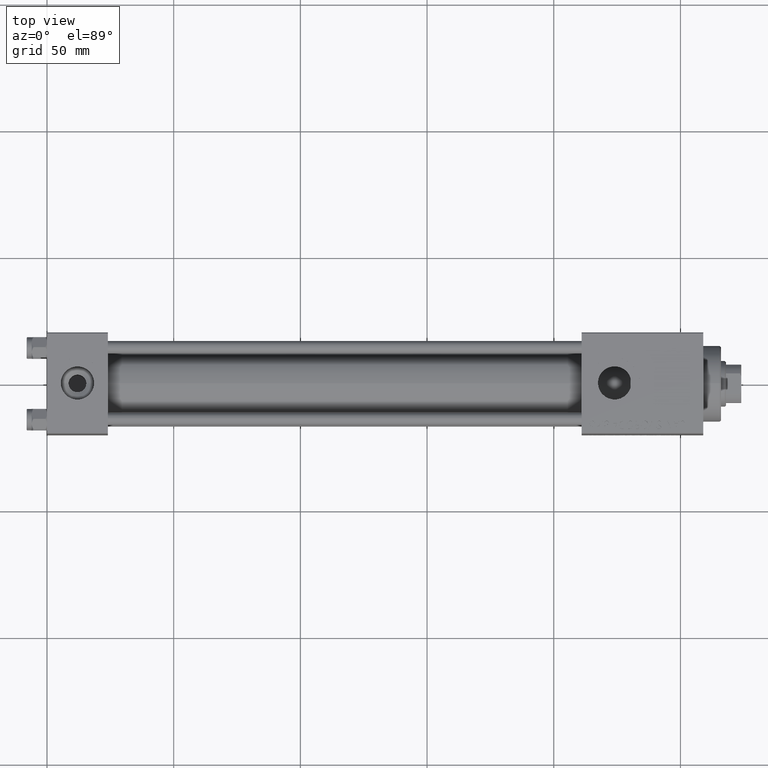
[diagram: clean part render]
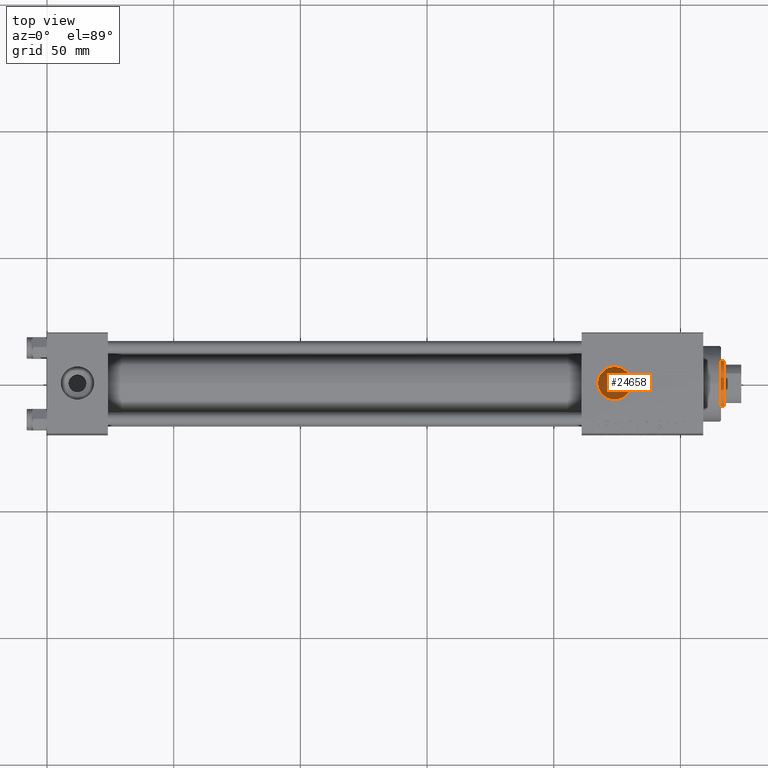
[diagram: same view with one face highlighted and labeled with its STEP entity id]
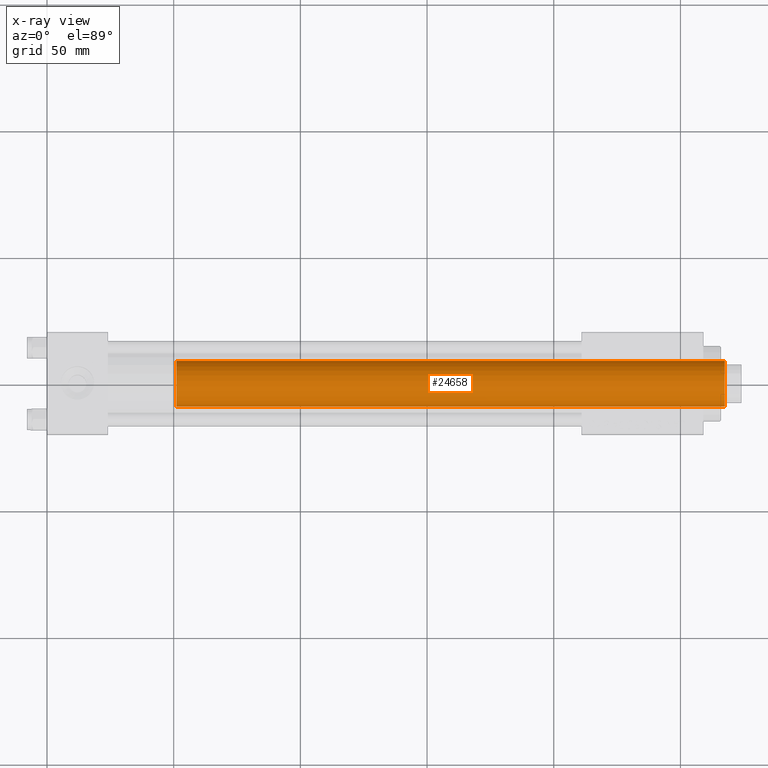
[diagram: x-ray of the same camera — body ghosted, the highlighted face saturated]
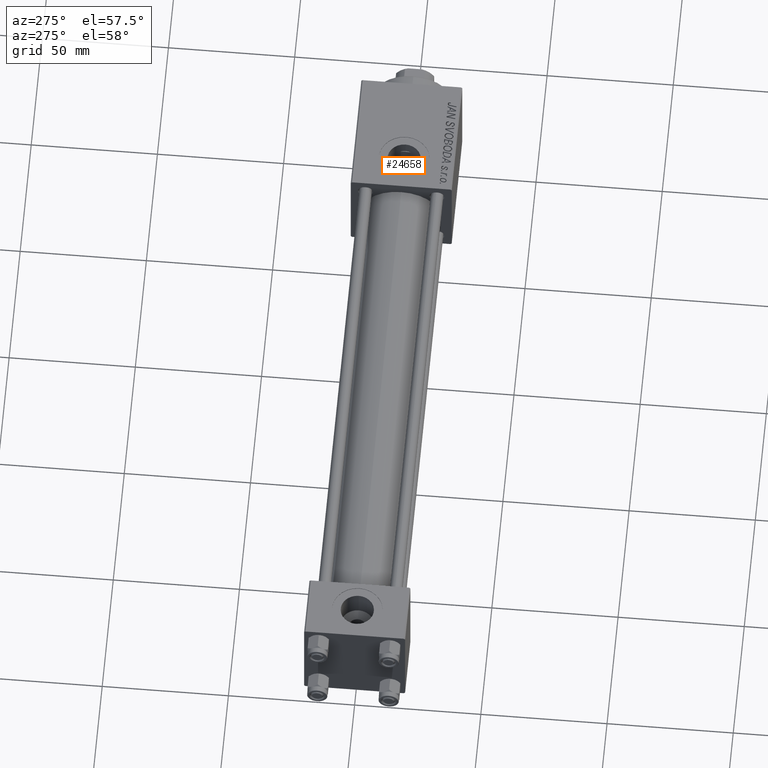
[diagram: same view with one face highlighted and labeled with its STEP entity id]
A machine part, top view. The second image highlights one B-rep face of the part: STEP entity #24658.
The next image is the same camera in x-ray: the body ghosted, the highlighted face saturated — about 0% of this face is hidden behind the body in this view.
A second angle (auxiliary view) of the same face is appended — the face is thin or edge-on in the first view.
In plain terms, the highlighted cylindrical surface (edge-blend (fillet) strip) has radius 9 mm, axis along (-1, 0, 0).
Its self-contained STEP definition (entity closure, byte-faithful):
#778 = ORIENTED_EDGE ( 'NONE', *, *, #42329, .T. ) ;
#2749 = DIRECTION ( 'NONE',  ( 1.000000000000000000, 0.000000000000000000, 0.000000000000000000 ) ) ;
#3013 = DIRECTION ( 'NONE',  ( 0.000000000000000000, 0.000000000000000000, -1.000000000000000000 ) ) ;
#3272 = CARTESIAN_POINT ( 'NONE',  ( 0.000000000000000000, 0.000000000000000000, 243.5000000000000284 ) ) ;
#3418 = DIRECTION ( 'NONE',  ( -0.000000000000000000, -0.000000000000000000, -1.000000000000000000 ) ) ;
#3854 = VERTEX_POINT ( 'NONE', #45619 ) ;
#5139 = CIRCLE ( 'NONE', #22811, 9.000000000000000000 ) ;
#10110 = CARTESIAN_POINT ( 'NONE',  ( -9.000000000000000000, 0.000000000000000000, 243.5000000000000284 ) ) ;
#10215 = CARTESIAN_POINT ( 'NONE',  ( 9.000000000000000000, 1.102182119232617714E-15, 244.0000000000000000 ) ) ;
#11556 = AXIS2_PLACEMENT_3D ( 'NONE', #18304, #27515, #34374 ) ;
#16127 = CARTESIAN_POINT ( 'NONE',  ( 9.000000000000000000, 1.102182119232617714E-15, 243.5000000000000284 ) ) ;
#16665 = VECTOR ( 'NONE', #43604, 1000.000000000000000 ) ;
#17457 = CIRCLE ( 'NONE', #11556, 9.000000000000000000 ) ;
#18304 = CARTESIAN_POINT ( 'NONE',  ( 0.000000000000000000, 0.000000000000000000, 27.00000000000000000 ) ) ;
#20531 = CYLINDRICAL_SURFACE ( 'NONE', #24466, 9.000000000000000000 ) ;
#22811 = AXIS2_PLACEMENT_3D ( 'NONE', #3272, #3013, #2749 ) ;
#24466 = AXIS2_PLACEMENT_3D ( 'NONE', #27389, #3418, #35820 ) ;
#24658 = ADVANCED_FACE ( 'NONE', ( #28429 ), #20531, .T. ) ;
#25683 = EDGE_CURVE ( 'NONE', #46481, #50999, #46314, .T. ) ;
#26298 = DIRECTION ( 'NONE',  ( -0.000000000000000000, -0.000000000000000000, -1.000000000000000000 ) ) ;
#27389 = CARTESIAN_POINT ( 'NONE',  ( 0.000000000000000000, 0.000000000000000000, 244.0000000000000000 ) ) ;
#27515 = DIRECTION ( 'NONE',  ( 0.000000000000000000, 0.000000000000000000, 1.000000000000000000 ) ) ;
#28429 = FACE_OUTER_BOUND ( 'NONE', #31915, .T. ) ;
#29904 = EDGE_CURVE ( 'NONE', #3854, #50999, #17457, .T. ) ;
#30690 = EDGE_CURVE ( 'NONE', #32820, #3854, #50981, .T. ) ;
#31915 = EDGE_LOOP ( 'NONE', ( #42246, #778, #48993, #32651 ) ) ;
#32651 = ORIENTED_EDGE ( 'NONE', *, *, #29904, .T. ) ;
#32820 = VERTEX_POINT ( 'NONE', #10110 ) ;
#34374 = DIRECTION ( 'NONE',  ( 1.000000000000000000, 0.000000000000000000, 0.000000000000000000 ) ) ;
#35820 = DIRECTION ( 'NONE',  ( -1.000000000000000000, 0.000000000000000000, 0.000000000000000000 ) ) ;
#40155 = VECTOR ( 'NONE', #26298, 1000.000000000000000 ) ;
#42246 = ORIENTED_EDGE ( 'NONE', *, *, #25683, .F. ) ;
#42329 = EDGE_CURVE ( 'NONE', #46481, #32820, #5139, .T. ) ;
#43604 = DIRECTION ( 'NONE',  ( -0.000000000000000000, -0.000000000000000000, -1.000000000000000000 ) ) ;
#45619 = CARTESIAN_POINT ( 'NONE',  ( -9.000000000000000000, 0.000000000000000000, 27.00000000000000000 ) ) ;
#46314 = LINE ( 'NONE', #10215, #40155 ) ;
#46481 = VERTEX_POINT ( 'NONE', #16127 ) ;
#46983 = CARTESIAN_POINT ( 'NONE',  ( 9.000000000000000000, 1.102182119232617714E-15, 27.00000000000000000 ) ) ;
#48993 = ORIENTED_EDGE ( 'NONE', *, *, #30690, .T. ) ;
#50981 = LINE ( 'NONE', #51248, #16665 ) ;
#50999 = VERTEX_POINT ( 'NONE', #46983 ) ;
#51248 = CARTESIAN_POINT ( 'NONE',  ( -9.000000000000000000, 0.000000000000000000, 244.0000000000000000 ) ) ;